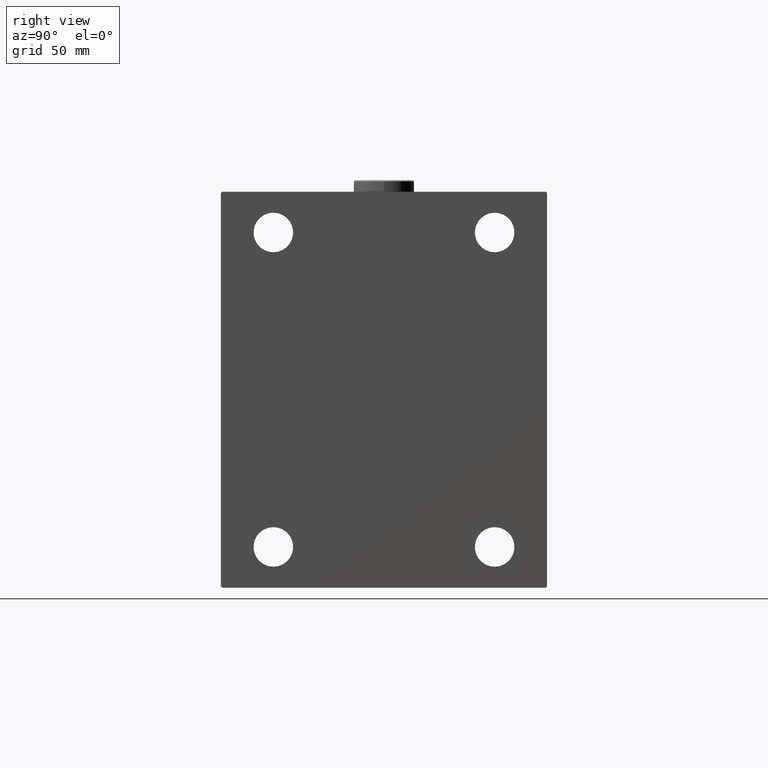
[diagram: clean part render]
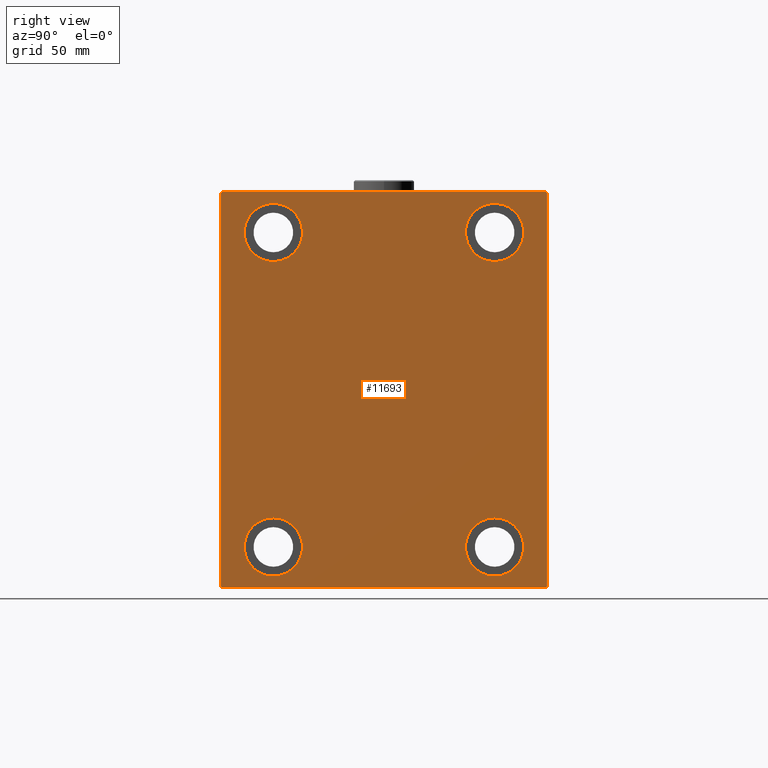
[diagram: same view with one face highlighted and labeled with its STEP entity id]
A machine part, right view. The second image highlights one B-rep face of the part: STEP entity #11693.
In plain terms, the highlighted planar face has unit normal (1, 0, 0).
Its self-contained STEP definition (entity closure, byte-faithful):
#949 = DIRECTION ( 'NONE',  ( -1.000000000000000000, -0.000000000000000000, -0.000000000000000000 ) ) ;
#1689 = EDGE_CURVE ( 'NONE', #2245, #33253, #5518, .T. ) ;
#2197 = DIRECTION ( 'NONE',  ( -0.000000000000000000, -0.7071067811865376918, 0.7071067811865573427 ) ) ;
#2245 = VERTEX_POINT ( 'NONE', #30131 ) ;
#2280 = EDGE_CURVE ( 'NONE', #21488, #23042, #29003, .T. ) ;
#2466 = DIRECTION ( 'NONE',  ( 0.000000000000000000, 0.000000000000000000, 1.000000000000000000 ) ) ;
#2648 = ORIENTED_EDGE ( 'NONE', *, *, #9094, .T. ) ;
#2765 = DIRECTION ( 'NONE',  ( -1.000000000000000000, -0.000000000000000000, -0.000000000000000000 ) ) ;
#2980 = DIRECTION ( 'NONE',  ( 0.000000000000000000, 1.000000000000000000, 9.912705577010325549E-17 ) ) ;
#3510 = VECTOR ( 'NONE', #10665, 1000.000000000000000 ) ;
#3883 = DIRECTION ( 'NONE',  ( 0.000000000000000000, 0.000000000000000000, 1.000000000000000000 ) ) ;
#4530 = EDGE_LOOP ( 'NONE', ( #20378, #20977 ) ) ;
#5401 = EDGE_CURVE ( 'NONE', #38985, #11134, #13362, .T. ) ;
#5518 = LINE ( 'NONE', #37611, #14334 ) ;
#5533 = EDGE_CURVE ( 'NONE', #13821, #11731, #32756, .T. ) ;
#5659 = EDGE_CURVE ( 'NONE', #33253, #11719, #22270, .T. ) ;
#5771 = CARTESIAN_POINT ( 'NONE',  ( 205.0000000000000000, 70.00000000000002842, -85.00000000000001421 ) ) ;
#5854 = LINE ( 'NONE', #23295, #15405 ) ;
#5936 = AXIS2_PLACEMENT_3D ( 'NONE', #30847, #7204, #44809 ) ;
#6725 = VECTOR ( 'NONE', #39029, 1000.000000000000000 ) ;
#7204 = DIRECTION ( 'NONE',  ( -1.000000000000000000, -0.000000000000000000, -0.000000000000000000 ) ) ;
#7522 = FACE_OUTER_BOUND ( 'NONE', #23052, .T. ) ;
#7574 = EDGE_CURVE ( 'NONE', #44210, #2245, #11135, .T. ) ;
#7830 = CARTESIAN_POINT ( 'NONE',  ( 205.0000000000000000, -77.25000000000292744, -77.24999999999650413 ) ) ;
#8707 = CARTESIAN_POINT ( 'NONE',  ( 205.0000000000000000, 47.50000000000000711, -67.50000000000000000 ) ) ;
#8765 = CARTESIAN_POINT ( 'NONE',  ( 205.0000000000000000, 70.00000000000002842, -84.50000000000004263 ) ) ;
#9094 = EDGE_CURVE ( 'NONE', #33016, #38985, #23843, .T. ) ;
#9420 = CARTESIAN_POINT ( 'NONE',  ( 205.0000000000000000, -47.49999999999997868, 67.50000000000000000 ) ) ;
#9952 = CARTESIAN_POINT ( 'NONE',  ( 205.0000000000000000, 69.50000000000004263, -85.00000000000001421 ) ) ;
#10037 = VECTOR ( 'NONE', #41762, 1000.000000000000114 ) ;
#10665 = DIRECTION ( 'NONE',  ( 0.000000000000000000, -1.000000000000000000, -9.912705577010325549E-17 ) ) ;
#10899 = CARTESIAN_POINT ( 'NONE',  ( 205.0000000000000000, 70.00000000000001421, 85.00000000000000000 ) ) ;
#10967 = PLANE ( 'NONE',  #34341 ) ;
#11134 = VERTEX_POINT ( 'NONE', #8765 ) ;
#11135 = LINE ( 'NONE', #10899, #3510 ) ;
#11417 = CARTESIAN_POINT ( 'NONE',  ( 205.0000000000000000, -47.49999999999999289, -55.00000000000000711 ) ) ;
#11478 = CARTESIAN_POINT ( 'NONE',  ( 205.0000000000000000, -47.49999999999999289, -80.00000000000000000 ) ) ;
#11693 = ADVANCED_FACE ( 'NONE', ( #25871, #32288, #21971, #39836, #7522 ), #10967, .T. ) ;
#11719 = VERTEX_POINT ( 'NONE', #35947 ) ;
#11731 = VERTEX_POINT ( 'NONE', #11417 ) ;
#12022 = EDGE_LOOP ( 'NONE', ( #17722, #31412 ) ) ;
#12495 = CARTESIAN_POINT ( 'NONE',  ( 205.0000000000000000, -47.49999999999997868, 55.00000000000000000 ) ) ;
#13362 = LINE ( 'NONE', #27133, #10037 ) ;
#13580 = DIRECTION ( 'NONE',  ( 0.000000000000000000, 0.000000000000000000, 1.000000000000000000 ) ) ;
#13582 = VERTEX_POINT ( 'NONE', #35896 ) ;
#13821 = VERTEX_POINT ( 'NONE', #11478 ) ;
#13889 = CARTESIAN_POINT ( 'NONE',  ( 205.0000000000000000, 47.50000000000000711, 67.50000000000000000 ) ) ;
#14038 = DIRECTION ( 'NONE',  ( 0.000000000000000000, 0.000000000000000000, 1.000000000000000000 ) ) ;
#14063 = EDGE_CURVE ( 'NONE', #39963, #24698, #43915, .T. ) ;
#14334 = VECTOR ( 'NONE', #34171, 1000.000000000000000 ) ;
#14508 = CIRCLE ( 'NONE', #19624, 12.49999999999999645 ) ;
#15375 = CARTESIAN_POINT ( 'NONE',  ( 205.0000000000000000, -69.99999999999998579, 84.49999999999998579 ) ) ;
#15405 = VECTOR ( 'NONE', #2197, 1000.000000000000114 ) ;
#15487 = CARTESIAN_POINT ( 'NONE',  ( 205.0000000000000000, 47.50000000000000711, -55.00000000000000711 ) ) ;
#15975 = AXIS2_PLACEMENT_3D ( 'NONE', #45056, #44390, #2466 ) ;
#16056 = CARTESIAN_POINT ( 'NONE',  ( 205.0000000000000000, -69.99999999999998579, -85.00000000000002842 ) ) ;
#16534 = DIRECTION ( 'NONE',  ( 0.000000000000000000, -8.163404592832031500E-17, 1.000000000000000000 ) ) ;
#17489 = VERTEX_POINT ( 'NONE', #20525 ) ;
#17722 = ORIENTED_EDGE ( 'NONE', *, *, #37971, .T. ) ;
#18294 = CIRCLE ( 'NONE', #36592, 12.50000000000001066 ) ;
#18823 = CARTESIAN_POINT ( 'NONE',  ( 205.0000000000000000, -69.99999999999998579, 84.99999999999998579 ) ) ;
#19082 = EDGE_CURVE ( 'NONE', #17489, #44210, #5854, .T. ) ;
#19265 = DIRECTION ( 'NONE',  ( 0.000000000000000000, 0.000000000000000000, 1.000000000000000000 ) ) ;
#19624 = AXIS2_PLACEMENT_3D ( 'NONE', #8707, #22709, #19265 ) ;
#20197 = CARTESIAN_POINT ( 'NONE',  ( 205.0000000000000000, -47.49999999999997868, 80.00000000000001421 ) ) ;
#20378 = ORIENTED_EDGE ( 'NONE', *, *, #5533, .T. ) ;
#20525 = CARTESIAN_POINT ( 'NONE',  ( 205.0000000000000000, 70.00000000000001421, 84.50000000000004263 ) ) ;
#20977 = ORIENTED_EDGE ( 'NONE', *, *, #34568, .T. ) ;
#21300 = CARTESIAN_POINT ( 'NONE',  ( 205.0000000000000000, -47.49999999999997868, 67.50000000000000000 ) ) ;
#21488 = VERTEX_POINT ( 'NONE', #34859 ) ;
#21971 = FACE_BOUND ( 'NONE', #12022, .T. ) ;
#22124 = AXIS2_PLACEMENT_3D ( 'NONE', #9420, #2765, #33962 ) ;
#22270 = LINE ( 'NONE', #18823, #43705 ) ;
#22279 = LINE ( 'NONE', #7830, #6725 ) ;
#22304 = ORIENTED_EDGE ( 'NONE', *, *, #5659, .T. ) ;
#22415 = CARTESIAN_POINT ( 'NONE',  ( 205.0000000000000000, 0.000000000000000000, 0.000000000000000000 ) ) ;
#22709 = DIRECTION ( 'NONE',  ( -1.000000000000000000, -0.000000000000000000, -0.000000000000000000 ) ) ;
#23042 = VERTEX_POINT ( 'NONE', #15487 ) ;
#23052 = EDGE_LOOP ( 'NONE', ( #28798, #37667, #22304, #30271, #2648, #35931, #24638, #44945 ) ) ;
#23295 = CARTESIAN_POINT ( 'NONE',  ( 205.0000000000000000, 77.25000000000100897, 77.24999999999886313 ) ) ;
#23843 = LINE ( 'NONE', #16056, #24029 ) ;
#24008 = EDGE_CURVE ( 'NONE', #24698, #39963, #38974, .T. ) ;
#24029 = VECTOR ( 'NONE', #2980, 1000.000000000000000 ) ;
#24617 = EDGE_CURVE ( 'NONE', #11719, #33016, #22279, .T. ) ;
#24638 = ORIENTED_EDGE ( 'NONE', *, *, #25600, .T. ) ;
#24668 = DIRECTION ( 'NONE',  ( -1.000000000000000000, -0.000000000000000000, -0.000000000000000000 ) ) ;
#24698 = VERTEX_POINT ( 'NONE', #20197 ) ;
#24746 = DIRECTION ( 'NONE',  ( -1.000000000000000000, -0.000000000000000000, -0.000000000000000000 ) ) ;
#24966 = DIRECTION ( 'NONE',  ( 0.000000000000000000, 0.000000000000000000, -1.000000000000000000 ) ) ;
#25600 = EDGE_CURVE ( 'NONE', #11134, #17489, #37179, .T. ) ;
#25871 = FACE_BOUND ( 'NONE', #43953, .T. ) ;
#26691 = CARTESIAN_POINT ( 'NONE',  ( 205.0000000000000000, 47.50000000000000711, -67.50000000000000000 ) ) ;
#27133 = CARTESIAN_POINT ( 'NONE',  ( 205.0000000000000000, 77.24999999999907629, -77.25000000000120792 ) ) ;
#28798 = ORIENTED_EDGE ( 'NONE', *, *, #7574, .T. ) ;
#29003 = CIRCLE ( 'NONE', #34117, 12.49999999999999645 ) ;
#29366 = ORIENTED_EDGE ( 'NONE', *, *, #24008, .T. ) ;
#29633 = EDGE_LOOP ( 'NONE', ( #33529, #29366 ) ) ;
#29677 = EDGE_CURVE ( 'NONE', #23042, #21488, #14508, .T. ) ;
#30131 = CARTESIAN_POINT ( 'NONE',  ( 205.0000000000000000, -69.49999999999994316, 84.99999999999998579 ) ) ;
#30271 = ORIENTED_EDGE ( 'NONE', *, *, #24617, .T. ) ;
#30573 = ORIENTED_EDGE ( 'NONE', *, *, #29677, .T. ) ;
#30847 = CARTESIAN_POINT ( 'NONE',  ( 205.0000000000000000, 47.50000000000000711, 67.50000000000000000 ) ) ;
#31412 = ORIENTED_EDGE ( 'NONE', *, *, #41472, .T. ) ;
#32185 = CARTESIAN_POINT ( 'NONE',  ( 205.0000000000000000, -69.50000000000001421, -85.00000000000002842 ) ) ;
#32288 = FACE_BOUND ( 'NONE', #29633, .T. ) ;
#32756 = CIRCLE ( 'NONE', #34201, 12.49999999999999645 ) ;
#33016 = VERTEX_POINT ( 'NONE', #32185 ) ;
#33207 = VERTEX_POINT ( 'NONE', #37873 ) ;
#33253 = VERTEX_POINT ( 'NONE', #15375 ) ;
#33529 = ORIENTED_EDGE ( 'NONE', *, *, #14063, .T. ) ;
#33562 = DIRECTION ( 'NONE',  ( -1.000000000000000000, -0.000000000000000000, -0.000000000000000000 ) ) ;
#33962 = DIRECTION ( 'NONE',  ( 0.000000000000000000, 0.000000000000000000, 1.000000000000000000 ) ) ;
#34117 = AXIS2_PLACEMENT_3D ( 'NONE', #26691, #33562, #13580 ) ;
#34171 = DIRECTION ( 'NONE',  ( 0.000000000000000000, -0.7071067811865867636, -0.7071067811865081598 ) ) ;
#34201 = AXIS2_PLACEMENT_3D ( 'NONE', #35800, #949, #14038 ) ;
#34341 = AXIS2_PLACEMENT_3D ( 'NONE', #22415, #38938, #24966 ) ;
#34539 = DIRECTION ( 'NONE',  ( 0.000000000000000000, 0.000000000000000000, 1.000000000000000000 ) ) ;
#34568 = EDGE_CURVE ( 'NONE', #11731, #13821, #35737, .T. ) ;
#34696 = VECTOR ( 'NONE', #16534, 1000.000000000000000 ) ;
#34859 = CARTESIAN_POINT ( 'NONE',  ( 205.0000000000000000, 47.50000000000000711, -80.00000000000000000 ) ) ;
#35737 = CIRCLE ( 'NONE', #15975, 12.49999999999999645 ) ;
#35800 = CARTESIAN_POINT ( 'NONE',  ( 205.0000000000000000, -47.49999999999999289, -67.50000000000000000 ) ) ;
#35896 = CARTESIAN_POINT ( 'NONE',  ( 205.0000000000000000, 47.50000000000000711, 55.00000000000000000 ) ) ;
#35931 = ORIENTED_EDGE ( 'NONE', *, *, #5401, .T. ) ;
#35947 = CARTESIAN_POINT ( 'NONE',  ( 205.0000000000000000, -69.99999999999998579, -84.50000000000001421 ) ) ;
#36240 = DIRECTION ( 'NONE',  ( 0.000000000000000000, 0.000000000000000000, -1.000000000000000000 ) ) ;
#36592 = AXIS2_PLACEMENT_3D ( 'NONE', #13889, #24668, #34539 ) ;
#37179 = LINE ( 'NONE', #5771, #34696 ) ;
#37611 = CARTESIAN_POINT ( 'NONE',  ( 205.0000000000000000, -77.24999999999612044, 77.25000000000468958 ) ) ;
#37667 = ORIENTED_EDGE ( 'NONE', *, *, #1689, .T. ) ;
#37873 = CARTESIAN_POINT ( 'NONE',  ( 205.0000000000000000, 47.50000000000000711, 80.00000000000001421 ) ) ;
#37971 = EDGE_CURVE ( 'NONE', #13582, #33207, #18294, .T. ) ;
#38938 = DIRECTION ( 'NONE',  ( 1.000000000000000000, 0.000000000000000000, 0.000000000000000000 ) ) ;
#38974 = CIRCLE ( 'NONE', #22124, 12.50000000000001066 ) ;
#38985 = VERTEX_POINT ( 'NONE', #9952 ) ;
#39029 = DIRECTION ( 'NONE',  ( -0.000000000000000000, 0.7071067811865181518, -0.7071067811865769936 ) ) ;
#39532 = AXIS2_PLACEMENT_3D ( 'NONE', #21300, #24746, #3883 ) ;
#39597 = CIRCLE ( 'NONE', #5936, 12.50000000000001066 ) ;
#39836 = FACE_BOUND ( 'NONE', #4530, .T. ) ;
#39963 = VERTEX_POINT ( 'NONE', #12495 ) ;
#40943 = ORIENTED_EDGE ( 'NONE', *, *, #2280, .T. ) ;
#41472 = EDGE_CURVE ( 'NONE', #33207, #13582, #39597, .T. ) ;
#41762 = DIRECTION ( 'NONE',  ( -0.000000000000000000, 0.7071067811865573427, 0.7071067811865376918 ) ) ;
#43558 = CARTESIAN_POINT ( 'NONE',  ( 205.0000000000000000, 69.50000000000007105, 85.00000000000000000 ) ) ;
#43705 = VECTOR ( 'NONE', #36240, 1000.000000000000000 ) ;
#43915 = CIRCLE ( 'NONE', #39532, 12.50000000000001066 ) ;
#43953 = EDGE_LOOP ( 'NONE', ( #40943, #30573 ) ) ;
#44210 = VERTEX_POINT ( 'NONE', #43558 ) ;
#44390 = DIRECTION ( 'NONE',  ( -1.000000000000000000, -0.000000000000000000, -0.000000000000000000 ) ) ;
#44809 = DIRECTION ( 'NONE',  ( 0.000000000000000000, 0.000000000000000000, 1.000000000000000000 ) ) ;
#44945 = ORIENTED_EDGE ( 'NONE', *, *, #19082, .T. ) ;
#45056 = CARTESIAN_POINT ( 'NONE',  ( 205.0000000000000000, -47.49999999999999289, -67.50000000000000000 ) ) ;